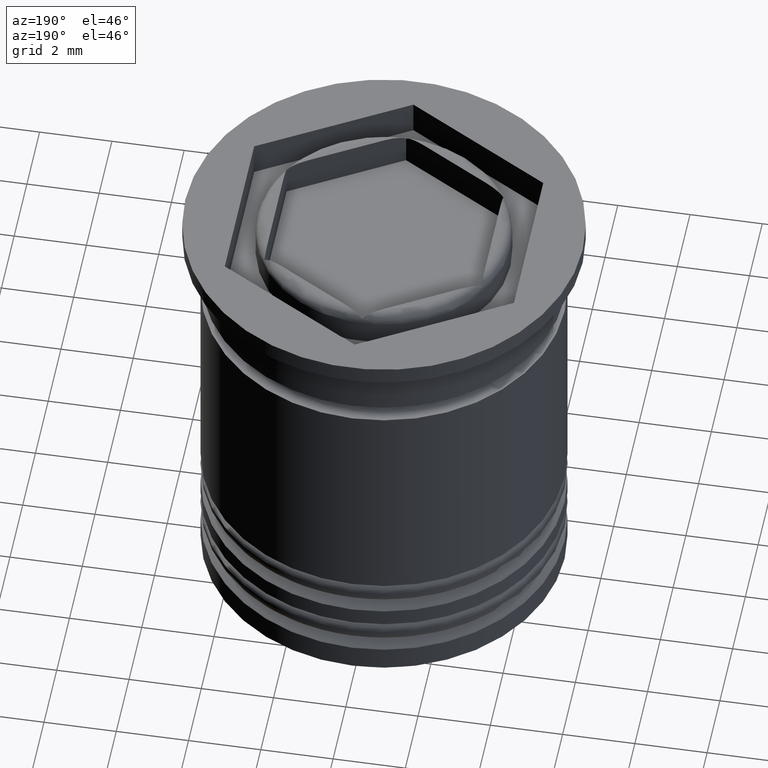
[diagram: clean part render]
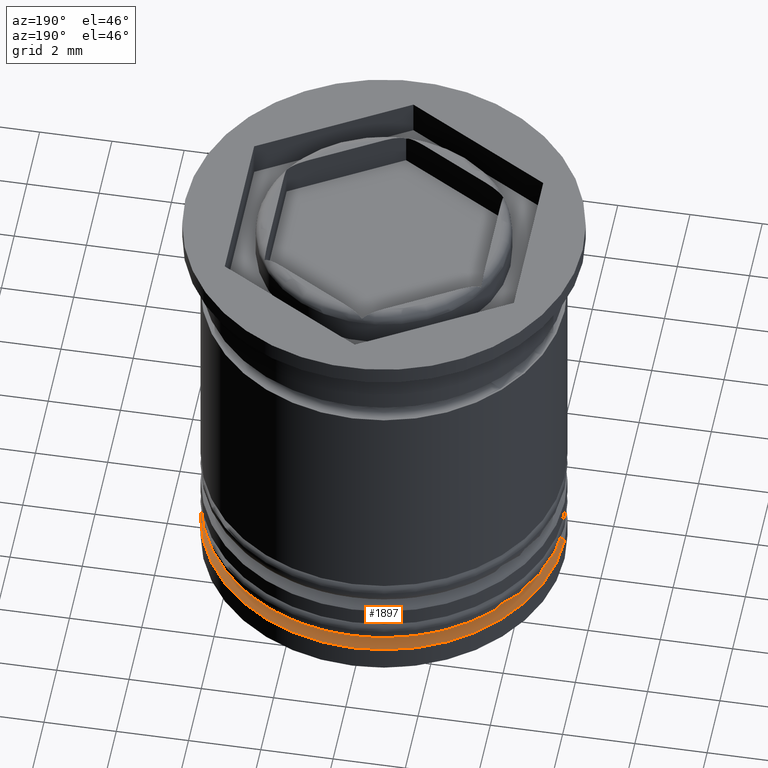
[diagram: same view with one face highlighted and labeled with its STEP entity id]
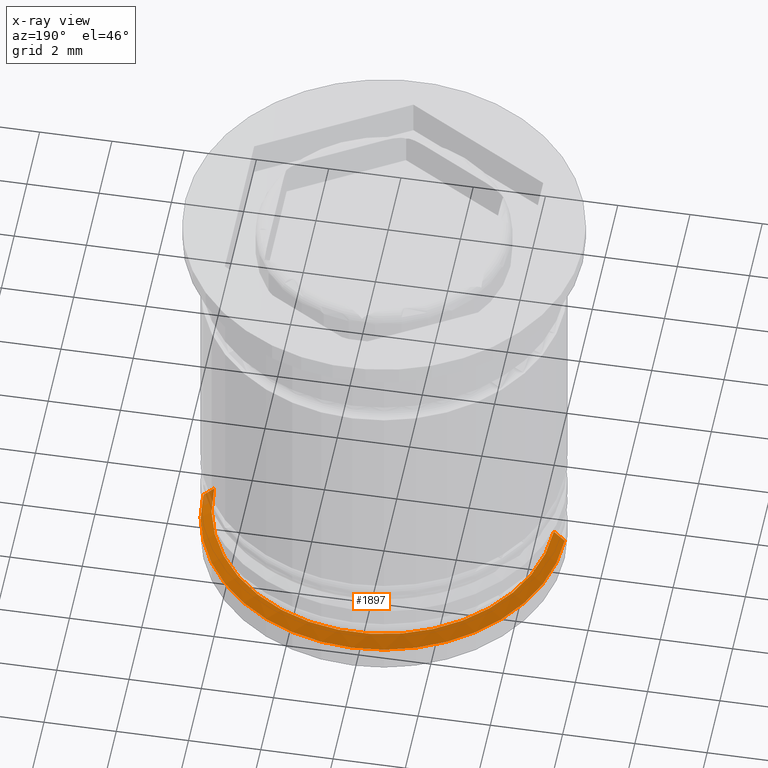
[diagram: x-ray of the same camera — body ghosted, the highlighted face saturated]
A machine part, auxiliary view. The second image highlights one B-rep face of the part: STEP entity #1897.
The next image is the same camera in x-ray: the body ghosted, the highlighted face saturated — about 2% of this face is hidden behind the body in this view.
In plain terms, the highlighted conical surface has half-angle 45 deg.
Its self-contained STEP definition (entity closure, byte-faithful):
#48 = CARTESIAN_POINT ( 'NONE',  ( -4.700000000000001066, 5.755839955992560641E-16, -11.20000000000000817 ) ) ;
#49 = VERTEX_POINT ( 'NONE', #980 ) ;
#80 = CARTESIAN_POINT ( 'NONE',  ( 4.700000000000001066, 0.000000000000000000, -11.20000000000000817 ) ) ;
#92 = CARTESIAN_POINT ( 'NONE',  ( 4.499999999999992006, 5.510910596163078709E-16, -11.00000000000000178 ) ) ;
#95 = EDGE_CURVE ( 'NONE', #659, #49, #705, .T. ) ;
#105 = CARTESIAN_POINT ( 'NONE',  ( 0.000000000000000000, 0.000000000000000000, -11.00000000000000178 ) ) ;
#111 = CIRCLE ( 'NONE', #1777, 4.700000000000001066 ) ;
#129 = LINE ( 'NONE', #92, #1753 ) ;
#144 = DIRECTION ( 'NONE',  ( -0.000000000000000000, -0.000000000000000000, 1.000000000000000000 ) ) ;
#258 = ORIENTED_EDGE ( 'NONE', *, *, #1836, .F. ) ;
#272 = FACE_OUTER_BOUND ( 'NONE', #830, .T. ) ;
#277 = DIRECTION ( 'NONE',  ( 0.7071067811865512365, 8.659560562354978464E-17, -0.7071067811865439090 ) ) ;
#529 = EDGE_CURVE ( 'NONE', #1270, #659, #111, .T. ) ;
#532 = VECTOR ( 'NONE', #1662, 1000.000000000000000 ) ;
#611 = CARTESIAN_POINT ( 'NONE',  ( 0.000000000000000000, 0.000000000000000000, -11.50000000000000533 ) ) ;
#659 = VERTEX_POINT ( 'NONE', #48 ) ;
#705 = LINE ( 'NONE', #837, #532 ) ;
#733 = DIRECTION ( 'NONE',  ( 0.000000000000000000, 0.000000000000000000, -1.000000000000000000 ) ) ;
#750 = ORIENTED_EDGE ( 'NONE', *, *, #1432, .T. ) ;
#761 = DIRECTION ( 'NONE',  ( -1.000000000000000000, 0.000000000000000000, 0.000000000000000000 ) ) ;
#803 = CARTESIAN_POINT ( 'NONE',  ( 0.000000000000000000, 0.000000000000000000, -11.20000000000000817 ) ) ;
#830 = EDGE_LOOP ( 'NONE', ( #1398, #750, #258, #1576 ) ) ;
#837 = CARTESIAN_POINT ( 'NONE',  ( -4.499999999999992006, 0.000000000000000000, -11.00000000000000178 ) ) ;
#886 = DIRECTION ( 'NONE',  ( -1.000000000000000000, 0.000000000000000000, 0.000000000000000000 ) ) ;
#920 = DIRECTION ( 'NONE',  ( 0.000000000000000000, 0.000000000000000000, -1.000000000000000000 ) ) ;
#980 = CARTESIAN_POINT ( 'NONE',  ( -5.000000000000000888, 6.123233995736767268E-16, -11.50000000000000533 ) ) ;
#1100 = AXIS2_PLACEMENT_3D ( 'NONE', #105, #733, #886 ) ;
#1270 = VERTEX_POINT ( 'NONE', #80 ) ;
#1369 = AXIS2_PLACEMENT_3D ( 'NONE', #611, #920, #2075 ) ;
#1385 = CARTESIAN_POINT ( 'NONE',  ( 5.000000000000000888, 0.000000000000000000, -11.50000000000000533 ) ) ;
#1398 = ORIENTED_EDGE ( 'NONE', *, *, #529, .F. ) ;
#1432 = EDGE_CURVE ( 'NONE', #1270, #1801, #129, .T. ) ;
#1576 = ORIENTED_EDGE ( 'NONE', *, *, #95, .F. ) ;
#1662 = DIRECTION ( 'NONE',  ( -0.7071067811865512365, 0.000000000000000000, -0.7071067811865439090 ) ) ;
#1727 = CIRCLE ( 'NONE', #1369, 5.000000000000000888 ) ;
#1753 = VECTOR ( 'NONE', #277, 1000.000000000000000 ) ;
#1777 = AXIS2_PLACEMENT_3D ( 'NONE', #803, #144, #761 ) ;
#1801 = VERTEX_POINT ( 'NONE', #1385 ) ;
#1836 = EDGE_CURVE ( 'NONE', #49, #1801, #1727, .T. ) ;
#1897 = ADVANCED_FACE ( 'NONE', ( #272 ), #2035, .T. ) ;
#2035 = CONICAL_SURFACE ( 'NONE', #1100, 4.499999999999992006, 0.7853981633974533860 ) ;
#2075 = DIRECTION ( 'NONE',  ( -1.000000000000000000, 0.000000000000000000, 0.000000000000000000 ) ) ;